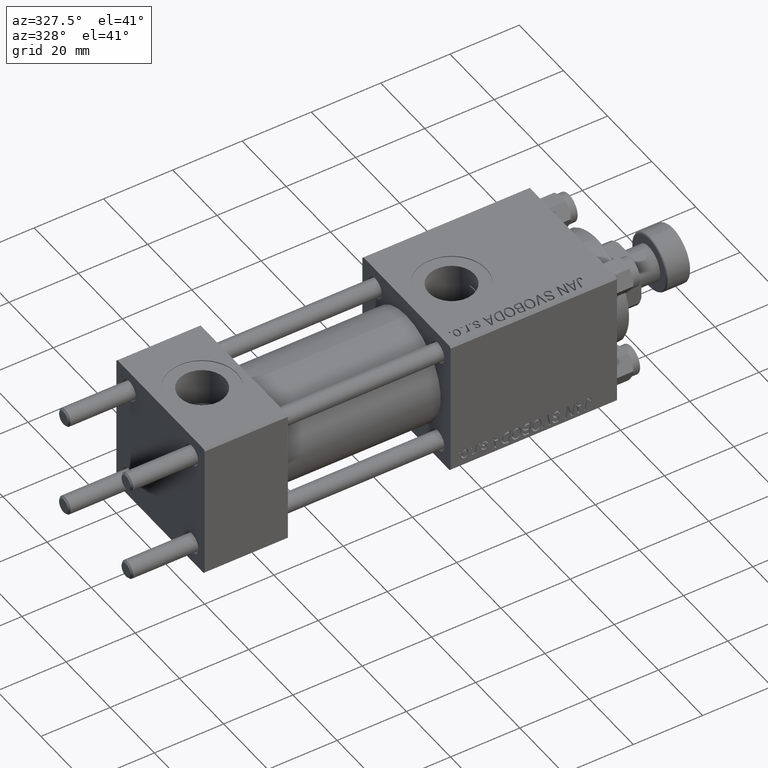
[diagram: clean part render]
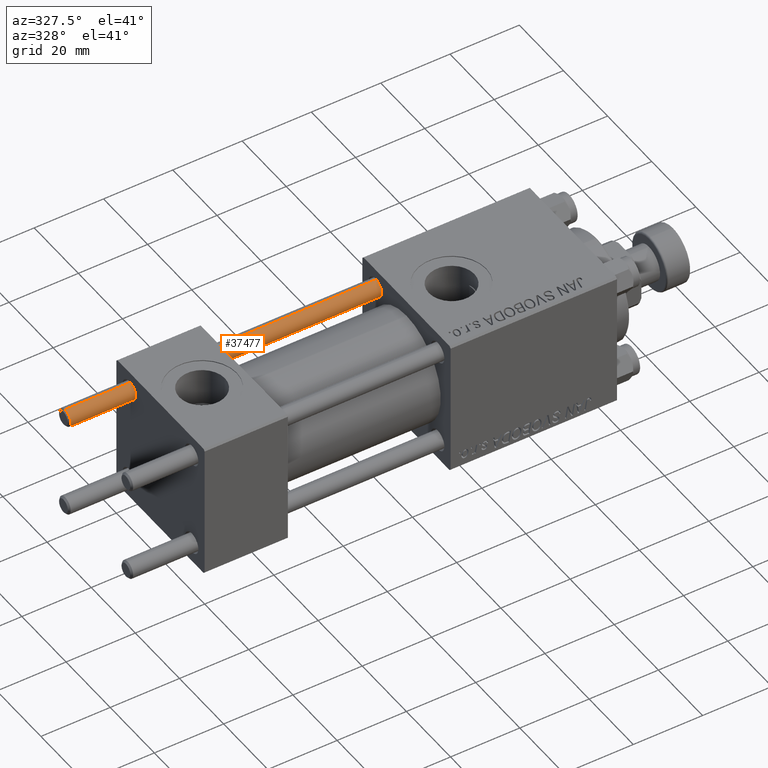
[diagram: same view with one face highlighted and labeled with its STEP entity id]
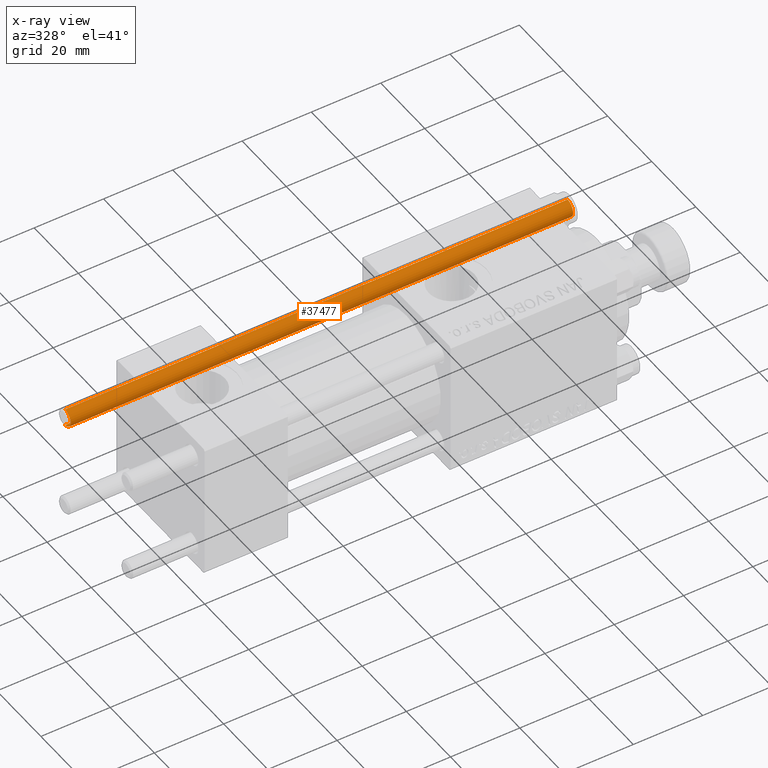
[diagram: x-ray of the same camera — body ghosted, the highlighted face saturated]
A machine part, auxiliary view. The second image highlights one B-rep face of the part: STEP entity #37477.
The next image is the same camera in x-ray: the body ghosted, the highlighted face saturated — about 0% of this face is hidden behind the body in this view.
In plain terms, the highlighted cylindrical surface (edge-blend (fillet) strip) has radius 2.5 mm, axis along (-1, -0, -0).
Its self-contained STEP definition (entity closure, byte-faithful):
#739 = CARTESIAN_POINT ( 'NONE',  ( -2.500000000000000000, 0.000000000000000000, 146.0000000000000000 ) ) ;
#1493 = DIRECTION ( 'NONE',  ( -0.000000000000000000, -0.000000000000000000, -1.000000000000000000 ) ) ;
#3015 = CARTESIAN_POINT ( 'NONE',  ( -2.500000000000000000, 0.000000000000000000, 0.5000000000000559552 ) ) ;
#3922 = VERTEX_POINT ( 'NONE', #38627 ) ;
#6718 = CIRCLE ( 'NONE', #36106, 2.500000000000000000 ) ;
#8681 = DIRECTION ( 'NONE',  ( -0.000000000000000000, -0.000000000000000000, 1.000000000000000000 ) ) ;
#9838 = CARTESIAN_POINT ( 'NONE',  ( -2.500000000000000000, 0.000000000000000000, 145.5000000000000284 ) ) ;
#11552 = CARTESIAN_POINT ( 'NONE',  ( 2.500000000000000000, 3.061616997868383141E-16, 146.0000000000000000 ) ) ;
#13831 = FACE_OUTER_BOUND ( 'NONE', #36480, .T. ) ;
#14526 = ORIENTED_EDGE ( 'NONE', *, *, #31752, .T. ) ;
#14961 = VECTOR ( 'NONE', #51561, 1000.000000000000000 ) ;
#15145 = AXIS2_PLACEMENT_3D ( 'NONE', #26726, #25948, #41997 ) ;
#15289 = VERTEX_POINT ( 'NONE', #9838 ) ;
#18480 = VECTOR ( 'NONE', #1493, 1000.000000000000000 ) ;
#20031 = ORIENTED_EDGE ( 'NONE', *, *, #35610, .T. ) ;
#20699 = LINE ( 'NONE', #739, #18480 ) ;
#20944 = CIRCLE ( 'NONE', #43676, 2.500000000000000000 ) ;
#22202 = CARTESIAN_POINT ( 'NONE',  ( 0.000000000000000000, 0.000000000000000000, 145.5000000000000284 ) ) ;
#25350 = ORIENTED_EDGE ( 'NONE', *, *, #28396, .F. ) ;
#25586 = ORIENTED_EDGE ( 'NONE', *, *, #36481, .T. ) ;
#25948 = DIRECTION ( 'NONE',  ( -0.000000000000000000, -0.000000000000000000, -1.000000000000000000 ) ) ;
#26672 = DIRECTION ( 'NONE',  ( 1.000000000000000000, 0.000000000000000000, 0.000000000000000000 ) ) ;
#26726 = CARTESIAN_POINT ( 'NONE',  ( 0.000000000000000000, 0.000000000000000000, 146.0000000000000000 ) ) ;
#28149 = DIRECTION ( 'NONE',  ( 1.000000000000000000, 0.000000000000000000, 0.000000000000000000 ) ) ;
#28396 = EDGE_CURVE ( 'NONE', #3922, #37611, #48394, .T. ) ;
#31752 = EDGE_CURVE ( 'NONE', #3922, #15289, #20944, .T. ) ;
#33003 = CARTESIAN_POINT ( 'NONE',  ( 2.500000000000000000, 3.061616997868383141E-16, 0.5000000000000559552 ) ) ;
#35610 = EDGE_CURVE ( 'NONE', #37788, #37611, #6718, .T. ) ;
#36106 = AXIS2_PLACEMENT_3D ( 'NONE', #47181, #8681, #28149 ) ;
#36480 = EDGE_LOOP ( 'NONE', ( #25350, #14526, #25586, #20031 ) ) ;
#36481 = EDGE_CURVE ( 'NONE', #15289, #37788, #20699, .T. ) ;
#37477 = ADVANCED_FACE ( 'NONE', ( #13831 ), #45953, .T. ) ;
#37611 = VERTEX_POINT ( 'NONE', #33003 ) ;
#37724 = DIRECTION ( 'NONE',  ( 0.000000000000000000, 0.000000000000000000, -1.000000000000000000 ) ) ;
#37788 = VERTEX_POINT ( 'NONE', #3015 ) ;
#38627 = CARTESIAN_POINT ( 'NONE',  ( 2.500000000000000000, 3.061616997868383141E-16, 145.5000000000000284 ) ) ;
#41997 = DIRECTION ( 'NONE',  ( -1.000000000000000000, 0.000000000000000000, 0.000000000000000000 ) ) ;
#43676 = AXIS2_PLACEMENT_3D ( 'NONE', #22202, #37724, #26672 ) ;
#45953 = CYLINDRICAL_SURFACE ( 'NONE', #15145, 2.500000000000000000 ) ;
#47181 = CARTESIAN_POINT ( 'NONE',  ( 0.000000000000000000, 0.000000000000000000, 0.5000000000000559552 ) ) ;
#48394 = LINE ( 'NONE', #11552, #14961 ) ;
#51561 = DIRECTION ( 'NONE',  ( -0.000000000000000000, -0.000000000000000000, -1.000000000000000000 ) ) ;